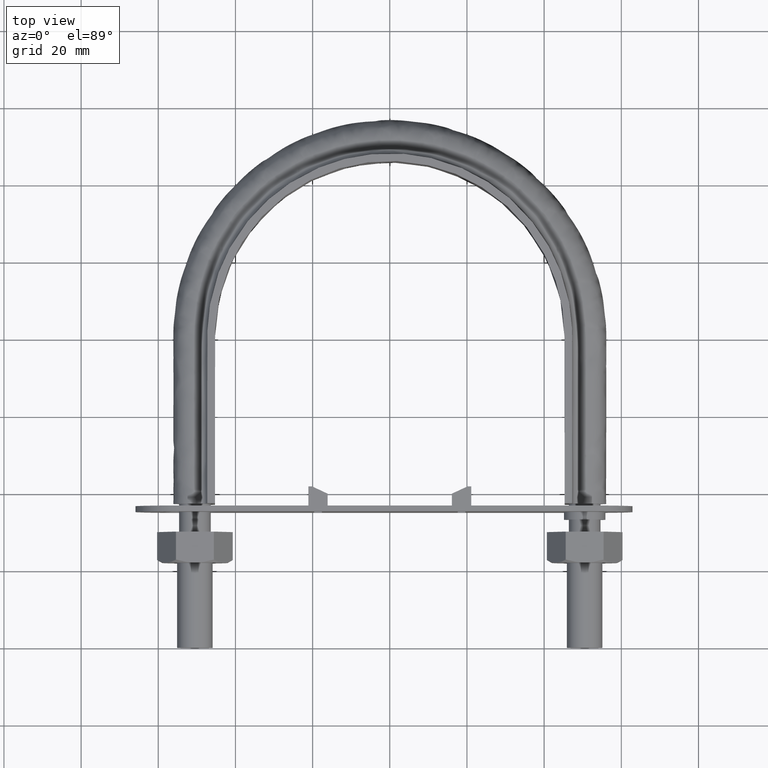
[diagram: clean part render]
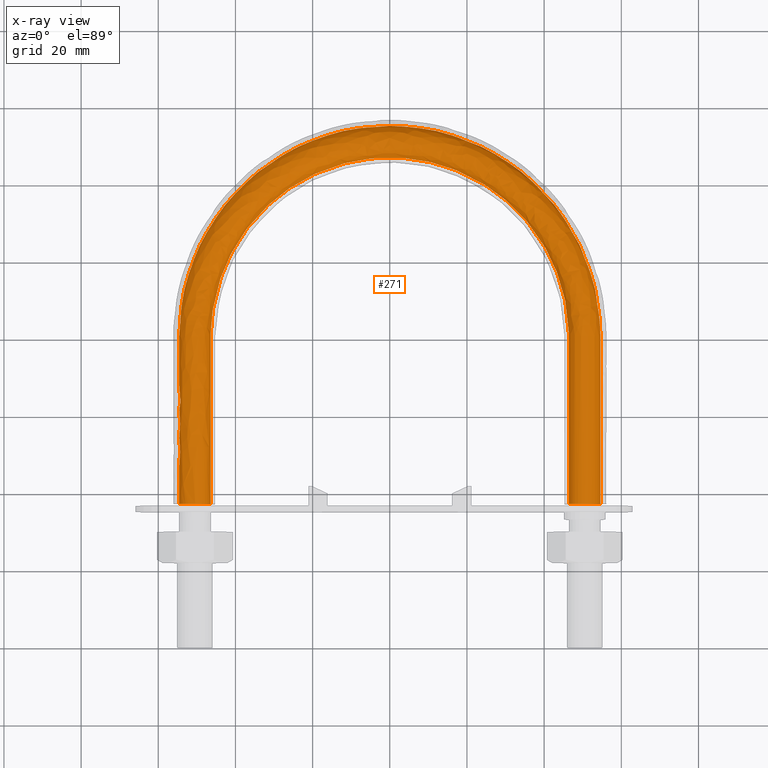
[diagram: x-ray — body ghosted, one internal face saturated and labeled with its STEP entity id]
A machine part, top view, then the same camera in x-ray: the body is ghosted and one INTERNAL B-rep face — a face not visible from any outside direction — is saturated and labeled: STEP entity #271.
In plain terms, the highlighted face is a freeform B-spline surface patch.
Its self-contained STEP definition (entity closure, byte-faithful):
#271 = ADVANCED_FACE( '', ( #388, #389 ), #390, .T. );
#388 = FACE_OUTER_BOUND( '', #641, .T. );
#389 = FACE_OUTER_BOUND( '', #642, .T. );
#390 = B_SPLINE_SURFACE_WITH_KNOTS( '', 3, 3, ( ( #643, #644, #645, #646, #647, #648, #649, #650, #651, #652, #653, #654, #655, #656, #657, #658 ), ( #659, #660, #661, #662, #663, #664, #665, #666, #667, #668, #669, #670, #671, #672, #673, #674 ), ( #675, #676, #677, #678, #679, #680, #681, #682, #683, #684, #685, #686, #687, #688, #689, #690 ), ( #691, #692, #693, #694, #695, #696, #697, #698, #699, #700, #701, #702, #703, #704, #705, #706 ), ( #707, #708, #709, #710, #711, #712, #713, #714, #715, #716, #717, #718, #719, #720, #721, #722 ), ( #723, #724, #725, #726, #727, #728, #729, #730, #731, #732, #733, #734, #735, #736, #737, #738 ), ( #739, #740, #741, #742, #743, #744, #745, #746, #747, #748, #749, #750, #751, #752, #753, #754 ), ( #755, #756, #757, #758, #759, #760, #761, #762, #763, #764, #765, #766, #767, #768, #769, #770 ), ( #771, #772, #773, #774, #775, #776, #777, #778, #779, #780, #781, #782, #783, #784, #785, #786 ), ( #787, #788, #789, #790, #791, #792, #793, #794, #795, #796, #797, #798, #799, #800, #801, #802 ) ), .UNSPECIFIED., .T., .F., .F., ( 2, 1, 1, 1, 1, 1, 1, 1, 1, 1, 1, 2 ), ( 4, 3, 1, 1, 1, 1, 1, 1, 3, 4 ), ( -0.285714285714286, -0.142857142857143, 0.000000000000000, 0.142857142857143, 0.285714285714286, 0.428571428571429, 0.571428571428571, 0.714285714285714, 0.857142857142857, 1.00000000000000, 1.14285714285714, 1.28571428571429 ), ( 0.000000000000000, 1.00000000000000, 2.00000000000000, 3.00000000000000, 4.00000000000000, 5.00000000000000, 6.00000000000000, 7.00000000000000, 8.00000000000000, 9.00000000000000 ), .UNSPECIFIED. );
#641 = EDGE_LOOP( '', ( #1724, #1725, #1726, #1727, #1728, #1729, #1730 ) );
#642 = EDGE_LOOP( '', ( #1731, #1732, #1733, #1734, #1735, #1736, #1737 ) );
#643 = CARTESIAN_POINT( '', ( 47.5768231851220, 34.1000000000000, -3.66554778583225 ) );
#644 = CARTESIAN_POINT( '', ( 47.5768231851220, 49.6333333333333, -3.66554778583225 ) );
#645 = CARTESIAN_POINT( '', ( 47.5768231851220, 65.1666666666667, -3.66554778583225 ) );
#646 = CARTESIAN_POINT( '', ( 47.5768231851220, 80.7000000000000, -3.66554778583225 ) );
#647 = CARTESIAN_POINT( '', ( 47.5768231851220, 87.8082408964273, -3.66554778583225 ) );
#648 = CARTESIAN_POINT( '', ( 44.3285383008820, 102.051017216330, -3.66554778583224 ) );
#649 = CARTESIAN_POINT( '', ( 30.6763003101874, 119.165938031577, -3.66554778583225 ) );
#650 = CARTESIAN_POINT( '', ( 10.9482448229265, 128.667579869022, -3.66554778583225 ) );
#651 = CARTESIAN_POINT( '', ( -10.9482448229264, 128.667579869022, -3.66554778583225 ) );
#652 = CARTESIAN_POINT( '', ( -30.6763003101874, 119.165938031577, -3.66554778583225 ) );
#653 = CARTESIAN_POINT( '', ( -44.3285383008820, 102.051017216330, -3.66554778583225 ) );
#654 = CARTESIAN_POINT( '', ( -47.5768231851220, 87.8082408964273, -3.66554778583225 ) );
#655 = CARTESIAN_POINT( '', ( -47.5768231851220, 80.7000000000000, -3.66554778583225 ) );
#656 = CARTESIAN_POINT( '', ( -47.5768231851220, 65.1666666666667, -3.66554778583225 ) );
#657 = CARTESIAN_POINT( '', ( -47.5768231851220, 49.6333333333333, -3.66554778583225 ) );
#658 = CARTESIAN_POINT( '', ( -47.5768231851220, 34.1000000000000, -3.66554778583225 ) );
#659 = CARTESIAN_POINT( '', ( 45.8115884074390, 34.1000000000000, 0.000000000000000 ) );
#660 = CARTESIAN_POINT( '', ( 45.8115884074390, 49.6333333333333, 0.000000000000000 ) );
#661 = CARTESIAN_POINT( '', ( 45.8115884074390, 65.1666666666667, 0.000000000000000 ) );
#662 = CARTESIAN_POINT( '', ( 45.8115884074390, 80.7000000000000, 0.000000000000000 ) );
#663 = CARTESIAN_POINT( '', ( 45.8115884074390, 87.5396386839121, 0.000000000000000 ) );
#664 = CARTESIAN_POINT( '', ( 42.6838240847164, 101.261089198707, 0.000000000000000 ) );
#665 = CARTESIAN_POINT( '', ( 29.5381227579056, 117.738149417462, 0.000000000000000 ) );
#666 = CARTESIAN_POINT( '', ( 10.5420339575894, 126.887965604265, 0.000000000000000 ) );
#667 = CARTESIAN_POINT( '', ( -10.5420339575894, 126.887965604265, 0.000000000000000 ) );
#668 = CARTESIAN_POINT( '', ( -29.5381227579056, 117.738149417462, 0.000000000000000 ) );
#669 = CARTESIAN_POINT( '', ( -42.6838240847164, 101.261089198707, 0.000000000000000 ) );
#670 = CARTESIAN_POINT( '', ( -45.8115884074390, 87.5396386839121, 0.000000000000000 ) );
#671 = CARTESIAN_POINT( '', ( -45.8115884074390, 80.7000000000000, 0.000000000000000 ) );
#672 = CARTESIAN_POINT( '', ( -45.8115884074390, 65.1666666666667, 0.000000000000000 ) );
#673 = CARTESIAN_POINT( '', ( -45.8115884074390, 49.6333333333333, 0.000000000000000 ) );
#674 = CARTESIAN_POINT( '', ( -45.8115884074390, 34.1000000000000, 0.000000000000000 ) );
#675 = CARTESIAN_POINT( '', ( 47.5768231851220, 34.1000000000000, 3.66554778583225 ) );
#676 = CARTESIAN_POINT( '', ( 47.5768231851220, 49.6333333333333, 3.66554778583225 ) );
#677 = CARTESIAN_POINT( '', ( 47.5768231851220, 65.1666666666667, 3.66554778583225 ) );
#678 = CARTESIAN_POINT( '', ( 47.5768231851220, 80.7000000000000, 3.66554778583225 ) );
#679 = CARTESIAN_POINT( '', ( 47.5768231851220, 87.8082408964273, 3.66554778583225 ) );
#680 = CARTESIAN_POINT( '', ( 44.3285383008820, 102.051017216330, 3.66554778583224 ) );
#681 = CARTESIAN_POINT( '', ( 30.6763003101874, 119.165938031577, 3.66554778583225 ) );
#682 = CARTESIAN_POINT( '', ( 10.9482448229265, 128.667579869022, 3.66554778583225 ) );
#683 = CARTESIAN_POINT( '', ( -10.9482448229264, 128.667579869022, 3.66554778583225 ) );
#684 = CARTESIAN_POINT( '', ( -30.6763003101874, 119.165938031577, 3.66554778583225 ) );
#685 = CARTESIAN_POINT( '', ( -44.3285383008820, 102.051017216330, 3.66554778583225 ) );
#686 = CARTESIAN_POINT( '', ( -47.5768231851220, 87.8082408964273, 3.66554778583225 ) );
#687 = CARTESIAN_POINT( '', ( -47.5768231851220, 80.7000000000000, 3.66554778583225 ) );
#688 = CARTESIAN_POINT( '', ( -47.5768231851220, 65.1666666666667, 3.66554778583225 ) );
#689 = CARTESIAN_POINT( '', ( -47.5768231851220, 49.6333333333333, 3.66554778583225 ) );
#690 = CARTESIAN_POINT( '', ( -47.5768231851220, 34.1000000000000, 3.66554778583225 ) );
#691 = CARTESIAN_POINT( '', ( 51.5432697263483, 34.1000000000000, 4.57086332538454 ) );
#692 = CARTESIAN_POINT( '', ( 51.5432697263483, 49.6333333333333, 4.57086332538454 ) );
#693 = CARTESIAN_POINT( '', ( 51.5432697263483, 65.1666666666667, 4.57086332538454 ) );
#694 = CARTESIAN_POINT( '', ( 51.5432697263483, 80.7000000000000, 4.57086332538454 ) );
#695 = CARTESIAN_POINT( '', ( 51.5432697263483, 88.4117845894621, 4.57086332538454 ) );
#696 = CARTESIAN_POINT( '', ( 48.0241775985503, 103.825969360335, 4.57086332538453 ) );
#697 = CARTESIAN_POINT( '', ( 33.2337620555738, 122.374149925913, 4.57086332538454 ) );
#698 = CARTESIAN_POINT( '', ( 11.8609923521473, 132.666336824417, 4.57086332538454 ) );
#699 = CARTESIAN_POINT( '', ( -11.8609923521472, 132.666336824418, 4.57086332538454 ) );
#700 = CARTESIAN_POINT( '', ( -33.2337620555738, 122.374149925913, 4.57086332538454 ) );
#701 = CARTESIAN_POINT( '', ( -48.0241775985503, 103.825969360335, 4.57086332538453 ) );
#702 = CARTESIAN_POINT( '', ( -51.5432697263483, 88.4117845894621, 4.57086332538454 ) );
#703 = CARTESIAN_POINT( '', ( -51.5432697263483, 80.7000000000000, 4.57086332538454 ) );
#704 = CARTESIAN_POINT( '', ( -51.5432697263483, 65.1666666666667, 4.57086332538454 ) );
#705 = CARTESIAN_POINT( '', ( -51.5432697263483, 49.6333333333333, 4.57086332538454 ) );
#706 = CARTESIAN_POINT( '', ( -51.5432697263483, 34.1000000000000, 4.57086332538454 ) );
#707 = CARTESIAN_POINT( '', ( 54.7241128848103, 34.1000000000000, 2.03422555230246 ) );
#708 = CARTESIAN_POINT( '', ( 54.7241128848103, 49.6333333333333, 2.03422555230246 ) );
#709 = CARTESIAN_POINT( '', ( 54.7241128848103, 65.1666666666667, 2.03422555230246 ) );
#710 = CARTESIAN_POINT( '', ( 54.7241128848103, 80.7000000000000, 2.03422555230246 ) );
#711 = CARTESIAN_POINT( '', ( 54.7241128848103, 88.8957890521138, 2.03422555230246 ) );
#712 = CARTESIAN_POINT( '', ( 50.9878502092738, 105.249370463859, 2.03422555230246 ) );
#713 = CARTESIAN_POINT( '', ( 35.2846871370765, 124.946936108439, 2.03422555230247 ) );
#714 = CARTESIAN_POINT( '', ( 12.5929590390921, 135.873090923261, 2.03422555230247 ) );
#715 = CARTESIAN_POINT( '', ( -12.5929590390920, 135.873090923261, 2.03422555230246 ) );
#716 = CARTESIAN_POINT( '', ( -35.2846871370765, 124.946936108438, 2.03422555230246 ) );
#717 = CARTESIAN_POINT( '', ( -50.9878502092738, 105.249370463859, 2.03422555230246 ) );
#718 = CARTESIAN_POINT( '', ( -54.7241128848102, 88.8957890521138, 2.03422555230246 ) );
#719 = CARTESIAN_POINT( '', ( -54.7241128848102, 80.7000000000000, 2.03422555230246 ) );
#720 = CARTESIAN_POINT( '', ( -54.7241128848102, 65.1666666666667, 2.03422555230246 ) );
#721 = CARTESIAN_POINT( '', ( -54.7241128848102, 49.6333333333333, 2.03422555230246 ) );
#722 = CARTESIAN_POINT( '', ( -54.7241128848102, 34.1000000000000, 2.03422555230246 ) );
#723 = CARTESIAN_POINT( '', ( 54.7241128848103, 34.1000000000000, -2.03422555230246 ) );
#724 = CARTESIAN_POINT( '', ( 54.7241128848103, 49.6333333333333, -2.03422555230246 ) );
#725 = CARTESIAN_POINT( '', ( 54.7241128848103, 65.1666666666667, -2.03422555230246 ) );
#726 = CARTESIAN_POINT( '', ( 54.7241128848103, 80.7000000000000, -2.03422555230246 ) );
#727 = CARTESIAN_POINT( '', ( 54.7241128848103, 88.8957890521138, -2.03422555230246 ) );
#728 = CARTESIAN_POINT( '', ( 50.9878502092738, 105.249370463859, -2.03422555230246 ) );
#729 = CARTESIAN_POINT( '', ( 35.2846871370765, 124.946936108439, -2.03422555230246 ) );
#730 = CARTESIAN_POINT( '', ( 12.5929590390921, 135.873090923261, -2.03422555230246 ) );
#731 = CARTESIAN_POINT( '', ( -12.5929590390920, 135.873090923261, -2.03422555230246 ) );
#732 = CARTESIAN_POINT( '', ( -35.2846871370765, 124.946936108438, -2.03422555230246 ) );
#733 = CARTESIAN_POINT( '', ( -50.9878502092738, 105.249370463859, -2.03422555230246 ) );
#734 = CARTESIAN_POINT( '', ( -54.7241128848102, 88.8957890521138, -2.03422555230246 ) );
#735 = CARTESIAN_POINT( '', ( -54.7241128848102, 80.7000000000000, -2.03422555230246 ) );
#736 = CARTESIAN_POINT( '', ( -54.7241128848102, 65.1666666666667, -2.03422555230246 ) );
#737 = CARTESIAN_POINT( '', ( -54.7241128848102, 49.6333333333333, -2.03422555230246 ) );
#738 = CARTESIAN_POINT( '', ( -54.7241128848102, 34.1000000000000, -2.03422555230246 ) );
#739 = CARTESIAN_POINT( '', ( 51.5432697263483, 34.1000000000000, -4.57086332538454 ) );
#740 = CARTESIAN_POINT( '', ( 51.5432697263483, 49.6333333333333, -4.57086332538454 ) );
#741 = CARTESIAN_POINT( '', ( 51.5432697263483, 65.1666666666667, -4.57086332538454 ) );
#742 = CARTESIAN_POINT( '', ( 51.5432697263483, 80.7000000000000, -4.57086332538454 ) );
#743 = CARTESIAN_POINT( '', ( 51.5432697263483, 88.4117845894621, -4.57086332538454 ) );
#744 = CARTESIAN_POINT( '', ( 48.0241775985503, 103.825969360335, -4.57086332538453 ) );
#745 = CARTESIAN_POINT( '', ( 33.2337620555738, 122.374149925913, -4.57086332538454 ) );
#746 = CARTESIAN_POINT( '', ( 11.8609923521473, 132.666336824417, -4.57086332538454 ) );
#747 = CARTESIAN_POINT( '', ( -11.8609923521472, 132.666336824418, -4.57086332538454 ) );
#748 = CARTESIAN_POINT( '', ( -33.2337620555738, 122.374149925913, -4.57086332538454 ) );
#749 = CARTESIAN_POINT( '', ( -48.0241775985503, 103.825969360335, -4.57086332538453 ) );
#750 = CARTESIAN_POINT( '', ( -51.5432697263483, 88.4117845894621, -4.57086332538454 ) );
#751 = CARTESIAN_POINT( '', ( -51.5432697263483, 80.7000000000000, -4.57086332538454 ) );
#752 = CARTESIAN_POINT( '', ( -51.5432697263483, 65.1666666666667, -4.57086332538454 ) );
#753 = CARTESIAN_POINT( '', ( -51.5432697263483, 49.6333333333333, -4.57086332538454 ) );
#754 = CARTESIAN_POINT( '', ( -51.5432697263483, 34.1000000000000, -4.57086332538454 ) );
#755 = CARTESIAN_POINT( '', ( 47.5768231851220, 34.1000000000000, -3.66554778583225 ) );
#756 = CARTESIAN_POINT( '', ( 47.5768231851220, 49.6333333333333, -3.66554778583225 ) );
#757 = CARTESIAN_POINT( '', ( 47.5768231851220, 65.1666666666667, -3.66554778583225 ) );
#758 = CARTESIAN_POINT( '', ( 47.5768231851220, 80.7000000000000, -3.66554778583225 ) );
#759 = CARTESIAN_POINT( '', ( 47.5768231851220, 87.8082408964273, -3.66554778583225 ) );
#760 = CARTESIAN_POINT( '', ( 44.3285383008820, 102.051017216330, -3.66554778583224 ) );
#761 = CARTESIAN_POINT( '', ( 30.6763003101874, 119.165938031577, -3.66554778583225 ) );
#762 = CARTESIAN_POINT( '', ( 10.9482448229265, 128.667579869022, -3.66554778583225 ) );
#763 = CARTESIAN_POINT( '', ( -10.9482448229264, 128.667579869022, -3.66554778583225 ) );
#764 = CARTESIAN_POINT( '', ( -30.6763003101874, 119.165938031577, -3.66554778583225 ) );
#765 = CARTESIAN_POINT( '', ( -44.3285383008820, 102.051017216330, -3.66554778583225 ) );
#766 = CARTESIAN_POINT( '', ( -47.5768231851220, 87.8082408964273, -3.66554778583225 ) );
#767 = CARTESIAN_POINT( '', ( -47.5768231851220, 80.7000000000000, -3.66554778583225 ) );
#768 = CARTESIAN_POINT( '', ( -47.5768231851220, 65.1666666666667, -3.66554778583225 ) );
#769 = CARTESIAN_POINT( '', ( -47.5768231851220, 49.6333333333333, -3.66554778583225 ) );
#770 = CARTESIAN_POINT( '', ( -47.5768231851220, 34.1000000000000, -3.66554778583225 ) );
#771 = CARTESIAN_POINT( '', ( 45.8115884074390, 34.1000000000000, 0.000000000000000 ) );
#772 = CARTESIAN_POINT( '', ( 45.8115884074390, 49.6333333333333, 0.000000000000000 ) );
#773 = CARTESIAN_POINT( '', ( 45.8115884074390, 65.1666666666667, 0.000000000000000 ) );
#774 = CARTESIAN_POINT( '', ( 45.8115884074390, 80.7000000000000, 0.000000000000000 ) );
#775 = CARTESIAN_POINT( '', ( 45.8115884074390, 87.5396386839121, 0.000000000000000 ) );
#776 = CARTESIAN_POINT( '', ( 42.6838240847164, 101.261089198707, 0.000000000000000 ) );
#777 = CARTESIAN_POINT( '', ( 29.5381227579056, 117.738149417462, 0.000000000000000 ) );
#778 = CARTESIAN_POINT( '', ( 10.5420339575894, 126.887965604265, 0.000000000000000 ) );
#779 = CARTESIAN_POINT( '', ( -10.5420339575894, 126.887965604265, 0.000000000000000 ) );
#780 = CARTESIAN_POINT( '', ( -29.5381227579056, 117.738149417462, 0.000000000000000 ) );
#781 = CARTESIAN_POINT( '', ( -42.6838240847164, 101.261089198707, 0.000000000000000 ) );
#782 = CARTESIAN_POINT( '', ( -45.8115884074390, 87.5396386839121, 0.000000000000000 ) );
#783 = CARTESIAN_POINT( '', ( -45.8115884074390, 80.7000000000000, 0.000000000000000 ) );
#784 = CARTESIAN_POINT( '', ( -45.8115884074390, 65.1666666666667, 0.000000000000000 ) );
#785 = CARTESIAN_POINT( '', ( -45.8115884074390, 49.6333333333333, 0.000000000000000 ) );
#786 = CARTESIAN_POINT( '', ( -45.8115884074390, 34.1000000000000, 0.000000000000000 ) );
#787 = CARTESIAN_POINT( '', ( 47.5768231851220, 34.1000000000000, 3.66554778583225 ) );
#788 = CARTESIAN_POINT( '', ( 47.5768231851220, 49.6333333333333, 3.66554778583225 ) );
#789 = CARTESIAN_POINT( '', ( 47.5768231851220, 65.1666666666667, 3.66554778583225 ) );
#790 = CARTESIAN_POINT( '', ( 47.5768231851220, 80.7000000000000, 3.66554778583225 ) );
#791 = CARTESIAN_POINT( '', ( 47.5768231851220, 87.8082408964273, 3.66554778583225 ) );
#792 = CARTESIAN_POINT( '', ( 44.3285383008820, 102.051017216330, 3.66554778583224 ) );
#793 = CARTESIAN_POINT( '', ( 30.6763003101874, 119.165938031577, 3.66554778583225 ) );
#794 = CARTESIAN_POINT( '', ( 10.9482448229265, 128.667579869022, 3.66554778583225 ) );
#795 = CARTESIAN_POINT( '', ( -10.9482448229264, 128.667579869022, 3.66554778583225 ) );
#796 = CARTESIAN_POINT( '', ( -30.6763003101874, 119.165938031577, 3.66554778583225 ) );
#797 = CARTESIAN_POINT( '', ( -44.3285383008820, 102.051017216330, 3.66554778583225 ) );
#798 = CARTESIAN_POINT( '', ( -47.5768231851220, 87.8082408964273, 3.66554778583225 ) );
#799 = CARTESIAN_POINT( '', ( -47.5768231851220, 80.7000000000000, 3.66554778583225 ) );
#800 = CARTESIAN_POINT( '', ( -47.5768231851220, 65.1666666666667, 3.66554778583225 ) );
#801 = CARTESIAN_POINT( '', ( -47.5768231851220, 49.6333333333333, 3.66554778583225 ) );
#802 = CARTESIAN_POINT( '', ( -47.5768231851220, 34.1000000000000, 3.66554778583225 ) );
#1724 = ORIENTED_EDGE( '', *, *, #2518, .T. );
#1725 = ORIENTED_EDGE( '', *, *, #2519, .T. );
#1726 = ORIENTED_EDGE( '', *, *, #2514, .T. );
#1727 = ORIENTED_EDGE( '', *, *, #2516, .T. );
#1728 = ORIENTED_EDGE( '', *, *, #2520, .T. );
#1729 = ORIENTED_EDGE( '', *, *, #2521, .T. );
#1730 = ORIENTED_EDGE( '', *, *, #2522, .T. );
#1731 = ORIENTED_EDGE( '', *, *, #2523, .T. );
#1732 = ORIENTED_EDGE( '', *, *, #2524, .T. );
#1733 = ORIENTED_EDGE( '', *, *, #2525, .T. );
#1734 = ORIENTED_EDGE( '', *, *, #2526, .T. );
#1735 = ORIENTED_EDGE( '', *, *, #2527, .T. );
#1736 = ORIENTED_EDGE( '', *, *, #2528, .T. );
#1737 = ORIENTED_EDGE( '', *, *, #2529, .T. );
#2514 = EDGE_CURVE( '', #2757, #2758, #2759, .T. );
#2516 = EDGE_CURVE( '', #2758, #2761, #2762, .T. );
#2518 = EDGE_CURVE( '', #2764, #2765, #2766, .T. );
#2519 = EDGE_CURVE( '', #2765, #2757, #2767, .T. );
#2520 = EDGE_CURVE( '', #2761, #2768, #2769, .T. );
#2521 = EDGE_CURVE( '', #2768, #2770, #2771, .T. );
#2522 = EDGE_CURVE( '', #2770, #2764, #2772, .T. );
#2523 = EDGE_CURVE( '', #2741, #2752, #2773, .T. );
#2524 = EDGE_CURVE( '', #2752, #2750, #2774, .T. );
#2525 = EDGE_CURVE( '', #2750, #2748, #2775, .T. );
#2526 = EDGE_CURVE( '', #2748, #2746, #2776, .T. );
#2527 = EDGE_CURVE( '', #2746, #2744, #2777, .T. );
#2528 = EDGE_CURVE( '', #2744, #2742, #2778, .T. );
#2529 = EDGE_CURVE( '', #2742, #2741, #2779, .T. );
#2741 = VERTEX_POINT( '', #3129 );
#2742 = VERTEX_POINT( '', #3130 );
#2744 = VERTEX_POINT( '', #3132 );
#2746 = VERTEX_POINT( '', #3134 );
#2748 = VERTEX_POINT( '', #3136 );
#2750 = VERTEX_POINT( '', #3138 );
#2752 = VERTEX_POINT( '', #3140 );
#2757 = VERTEX_POINT( '', #3145 );
#2758 = VERTEX_POINT( '', #3146 );
#2759 = B_SPLINE_CURVE_WITH_KNOTS( '', 3, ( #3147, #3148, #3149, #3150 ), .UNSPECIFIED., .F., .F., ( 4, 4 ), ( 0.00731437302338643, 0.0109748044148778 ), .UNSPECIFIED. );
#2761 = VERTEX_POINT( '', #3152 );
#2762 = B_SPLINE_CURVE_WITH_KNOTS( '', 3, ( #3153, #3154, #3155, #3156 ), .UNSPECIFIED., .F., .F., ( 4, 4 ), ( 0.0109748044148778, 0.0146317467085374 ), .UNSPECIFIED. );
#2764 = VERTEX_POINT( '', #3158 );
#2765 = VERTEX_POINT( '', #3159 );
#2766 = B_SPLINE_CURVE_WITH_KNOTS( '', 3, ( #3160, #3161, #3162, #3163 ), .UNSPECIFIED., .F., .F., ( 4, 4 ), ( 0.000000000000000, 0.00365969768494540 ), .UNSPECIFIED. );
#2767 = B_SPLINE_CURVE_WITH_KNOTS( '', 3, ( #3164, #3165, #3166, #3167 ), .UNSPECIFIED., .F., .F., ( 4, 4 ), ( 0.00365969768494540, 0.00731437302338643 ), .UNSPECIFIED. );
#2768 = VERTEX_POINT( '', #3168 );
#2769 = B_SPLINE_CURVE_WITH_KNOTS( '', 3, ( #3169, #3170, #3171, #3172 ), .UNSPECIFIED., .F., .F., ( 4, 4 ), ( 0.0146317467085374, 0.0182856759681444 ), .UNSPECIFIED. );
#2770 = VERTEX_POINT( '', #3173 );
#2771 = B_SPLINE_CURVE_WITH_KNOTS( '', 3, ( #3174, #3175, #3176, #3177 ), .UNSPECIFIED., .F., .F., ( 4, 4 ), ( 0.0182856759681444, 0.0219456464543864 ), .UNSPECIFIED. );
#2772 = B_SPLINE_CURVE_WITH_KNOTS( '', 3, ( #3178, #3179, #3180, #3181 ), .UNSPECIFIED., .F., .F., ( 4, 4 ), ( 0.0219456464543864, 0.0255944202292315 ), .UNSPECIFIED. );
#2773 = B_SPLINE_CURVE_WITH_KNOTS( '', 3, ( #3182, #3183, #3184, #3185 ), .UNSPECIFIED., .F., .F., ( 4, 4 ), ( 5.20417042793042E-017, 0.00365969768494583 ), .UNSPECIFIED. );
#2774 = B_SPLINE_CURVE_WITH_KNOTS( '', 3, ( #3186, #3187, #3188, #3189 ), .UNSPECIFIED., .F., .F., ( 4, 4 ), ( 0.00365969768494583, 0.00731437302338642 ), .UNSPECIFIED. );
#2775 = B_SPLINE_CURVE_WITH_KNOTS( '', 3, ( #3190, #3191, #3192, #3193 ), .UNSPECIFIED., .F., .F., ( 4, 4 ), ( 0.00731437302338642, 0.0109748044148777 ), .UNSPECIFIED. );
#2776 = B_SPLINE_CURVE_WITH_KNOTS( '', 3, ( #3194, #3195, #3196, #3197 ), .UNSPECIFIED., .F., .F., ( 4, 4 ), ( 0.0109748044148777, 0.0146317467085364 ), .UNSPECIFIED. );
#2777 = B_SPLINE_CURVE_WITH_KNOTS( '', 3, ( #3198, #3199, #3200, #3201 ), .UNSPECIFIED., .F., .F., ( 4, 4 ), ( 0.0146317467085364, 0.0182856759681197 ), .UNSPECIFIED. );
#2778 = B_SPLINE_CURVE_WITH_KNOTS( '', 3, ( #3202, #3203, #3204, #3205 ), .UNSPECIFIED., .F., .F., ( 4, 4 ), ( 0.0182856759681197, 0.0219456464543607 ), .UNSPECIFIED. );
#2779 = B_SPLINE_CURVE_WITH_KNOTS( '', 3, ( #3206, #3207, #3208, #3209 ), .UNSPECIFIED., .F., .F., ( 4, 4 ), ( 0.0219456464543607, 0.0255944202292314 ), .UNSPECIFIED. );
#3129 = CARTESIAN_POINT( '', ( -46.4000000000000, 37.3000000000000, 5.26579952126469E-014 ) );
#3130 = CARTESIAN_POINT( '', ( -47.9436918123994, 37.3000000000000, 3.20550907813503 ) );
#3132 = CARTESIAN_POINT( '', ( -51.4123358292446, 37.3000000000000, 3.99720443994006 ) );
#3134 = CARTESIAN_POINT( '', ( -54.1939723584001, 37.3000000000000, 1.77892333038152 ) );
#3136 = CARTESIAN_POINT( '', ( -54.1939723583999, 37.3000000000000, -1.77892333038199 ) );
#3138 = CARTESIAN_POINT( '', ( -51.4123358292208, 37.3000000000000, -3.99720443994549 ) );
#3140 = CARTESIAN_POINT( '', ( -47.9436918123793, 37.3000000000000, -3.20550907811901 ) );
#3145 = CARTESIAN_POINT( '', ( 51.4123358292208, 37.3000000000000, 3.99720443994551 ) );
#3146 = CARTESIAN_POINT( '', ( 54.1939723583999, 37.3000000000000, 1.77892333038198 ) );
#3147 = CARTESIAN_POINT( '', ( 51.4123358292208, 37.3000000000000, 3.99720443994550 ) );
#3148 = CARTESIAN_POINT( '', ( 52.6035507791689, 37.3000000000000, 3.72531740102390 ) );
#3149 = CARTESIAN_POINT( '', ( 53.6638318319896, 37.3000000000000, 2.87977147666320 ) );
#3150 = CARTESIAN_POINT( '', ( 54.1939723583999, 37.3000000000000, 1.77892333038201 ) );
#3152 = CARTESIAN_POINT( '', ( 54.1939723583998, 37.3000000000000, -1.77892333038233 ) );
#3153 = CARTESIAN_POINT( '', ( 54.1939723583999, 37.3000000000000, 1.77892333038198 ) );
#3154 = CARTESIAN_POINT( '', ( 54.7241128848103, 37.3000000000000, 0.678075184100702 ) );
#3155 = CARTESIAN_POINT( '', ( 54.7241128848103, 37.3000000000000, -0.678075184101098 ) );
#3156 = CARTESIAN_POINT( '', ( 54.1939723583998, 37.3000000000000, -1.77892333038232 ) );
#3158 = CARTESIAN_POINT( '', ( 46.4000000000000, 37.3000000000000, 4.33680868994202E-016 ) );
#3159 = CARTESIAN_POINT( '', ( 47.9436918123790, 37.3000000000000, 3.20550907811873 ) );
#3160 = CARTESIAN_POINT( '', ( 46.4000000000000, 37.3000000000000, 4.33680868994202E-016 ) );
#3161 = CARTESIAN_POINT( '', ( 46.4000000000000, 37.3000000000000, 1.22184926194398 ) );
#3162 = CARTESIAN_POINT( '', ( 46.9884115925609, 37.3000000000000, 2.44369852388796 ) );
#3163 = CARTESIAN_POINT( '', ( 47.9436918123790, 37.3000000000000, 3.20550907811873 ) );
#3164 = CARTESIAN_POINT( '', ( 47.9436918123790, 37.3000000000000, 3.20550907811873 ) );
#3165 = CARTESIAN_POINT( '', ( 48.8989720321972, 37.3000000000000, 3.96731963234961 ) );
#3166 = CARTESIAN_POINT( '', ( 50.2211208792726, 37.3000000000000, 4.26909147886710 ) );
#3167 = CARTESIAN_POINT( '', ( 51.4123358292207, 37.3000000000000, 3.99720443994553 ) );
#3168 = CARTESIAN_POINT( '', ( 51.4123358292205, 37.3000000000000, -3.99720443994556 ) );
#3169 = CARTESIAN_POINT( '', ( 54.1939723583998, 37.3000000000000, -1.77892333038232 ) );
#3170 = CARTESIAN_POINT( '', ( 53.6638318319893, 37.3000000000000, -2.87977147666345 ) );
#3171 = CARTESIAN_POINT( '', ( 52.6035507791685, 37.3000000000000, -3.72531740102411 ) );
#3172 = CARTESIAN_POINT( '', ( 51.4123358292203, 37.3000000000000, -3.99720443994559 ) );
#3173 = CARTESIAN_POINT( '', ( 47.9436918123792, 37.3000000000000, -3.20550907811892 ) );
#3174 = CARTESIAN_POINT( '', ( 51.4123358292205, 37.3000000000000, -3.99720443994557 ) );
#3175 = CARTESIAN_POINT( '', ( 50.2211208792726, 37.3000000000000, -4.26909147886704 ) );
#3176 = CARTESIAN_POINT( '', ( 48.8989720321972, 37.3000000000000, -3.96731963234957 ) );
#3177 = CARTESIAN_POINT( '', ( 47.9436918123791, 37.3000000000000, -3.20550907811882 ) );
#3178 = CARTESIAN_POINT( '', ( 47.9436918123792, 37.3000000000000, -3.20550907811892 ) );
#3179 = CARTESIAN_POINT( '', ( 46.9884115925610, 37.3000000000000, -2.44369852388816 ) );
#3180 = CARTESIAN_POINT( '', ( 46.4000000000000, 37.3000000000000, -1.22184926194408 ) );
#3181 = CARTESIAN_POINT( '', ( 46.4000000000000, 37.3000000000000, 3.25260651745651E-015 ) );
#3182 = CARTESIAN_POINT( '', ( -46.4000000000000, 37.3000000000000, -4.59701721133854E-014 ) );
#3183 = CARTESIAN_POINT( '', ( -46.4000000000000, 37.3000000000000, -1.22184926194415 ) );
#3184 = CARTESIAN_POINT( '', ( -46.9884115925610, 37.3000000000000, -2.44369852388825 ) );
#3185 = CARTESIAN_POINT( '', ( -47.9436918123793, 37.3000000000000, -3.20550907811900 ) );
#3186 = CARTESIAN_POINT( '', ( -47.9436918123793, 37.3000000000000, -3.20550907811899 ) );
#3187 = CARTESIAN_POINT( '', ( -48.8989720321975, 37.3000000000000, -3.96731963234968 ) );
#3188 = CARTESIAN_POINT( '', ( -50.2211208792728, 37.3000000000000, -4.26909147886709 ) );
#3189 = CARTESIAN_POINT( '', ( -51.4123358292208, 37.3000000000000, -3.99720443994549 ) );
#3190 = CARTESIAN_POINT( '', ( -51.4123358292208, 37.3000000000000, -3.99720443994549 ) );
#3191 = CARTESIAN_POINT( '', ( -52.6035507791689, 37.3000000000000, -3.72531740102388 ) );
#3192 = CARTESIAN_POINT( '', ( -53.6638318319896, 37.3000000000000, -2.87977147666317 ) );
#3193 = CARTESIAN_POINT( '', ( -54.1939723583999, 37.3000000000000, -1.77892333038198 ) );
#3194 = CARTESIAN_POINT( '', ( -54.1939723583998, 37.3000000000000, -1.77892333038215 ) );
#3195 = CARTESIAN_POINT( '', ( -54.7241128848102, 37.3000000000000, -0.678075184101072 ) );
#3196 = CARTESIAN_POINT( '', ( -54.7241128848102, 37.3000000000000, 0.678075184100430 ) );
#3197 = CARTESIAN_POINT( '', ( -54.1939723584001, 37.3000000000000, 1.77892333038151 ) );
#3198 = CARTESIAN_POINT( '', ( -54.1939723584037, 37.3000000000000, 1.77892333037345 ) );
#3199 = CARTESIAN_POINT( '', ( -53.6638318319969, 37.3000000000000, 2.87977147665280 ) );
#3200 = CARTESIAN_POINT( '', ( -52.6035507791832, 37.3000000000000, 3.72531740101259 ) );
#3201 = CARTESIAN_POINT( '', ( -51.4123358292446, 37.3000000000000, 3.99720443994007 ) );
#3202 = CARTESIAN_POINT( '', ( -51.4123358292536, 37.3000000000000, 3.99720443993765 ) );
#3203 = CARTESIAN_POINT( '', ( -50.2211208793034, 37.3000000000000, 4.26909147887026 ) );
#3204 = CARTESIAN_POINT( '', ( -48.8989720322224, 37.3000000000000, 3.96731963235899 ) );
#3205 = CARTESIAN_POINT( '', ( -47.9436918123994, 37.3000000000000, 3.20550907813503 ) );
#3206 = CARTESIAN_POINT( '', ( -47.9436918123994, 37.3000000000000, 3.20550907813503 ) );
#3207 = CARTESIAN_POINT( '', ( -46.9884115925693, 37.3000000000000, 2.44369852390539 ) );
#3208 = CARTESIAN_POINT( '', ( -46.4000000000000, 37.3000000000000, 1.22184926195269 ) );
#3209 = CARTESIAN_POINT( '', ( -46.4000000000000, 37.3000000000000, 4.33680868994202E-016 ) );